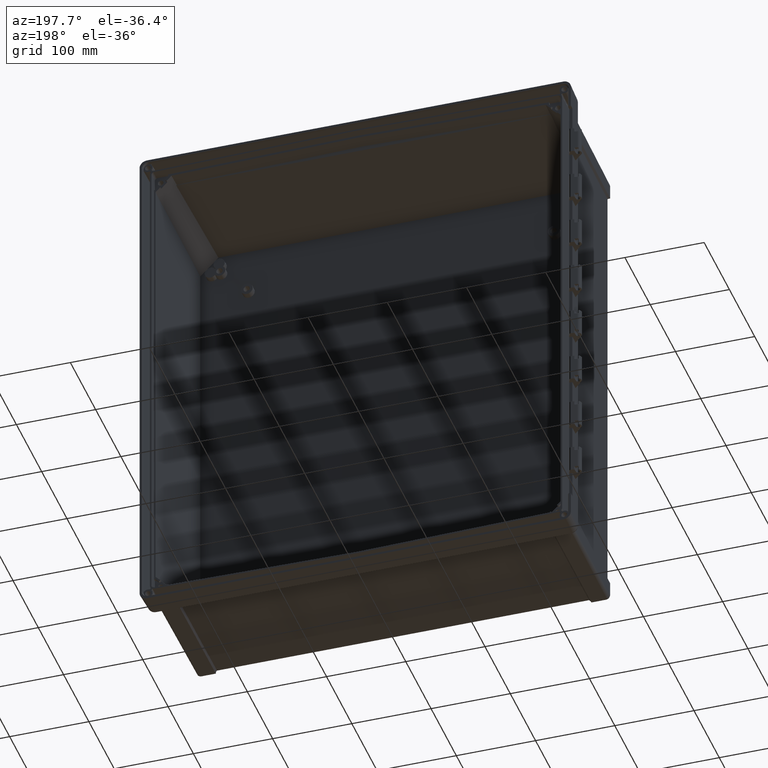
[diagram: clean part render]
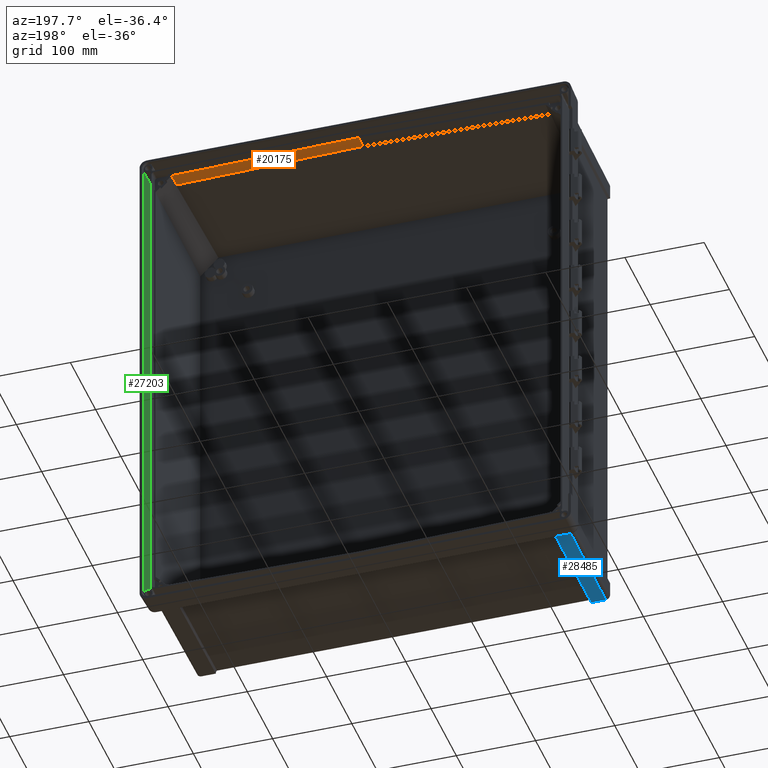
[diagram: same view with three faces highlighted in distinct colors, each labeled with its STEP entity id]
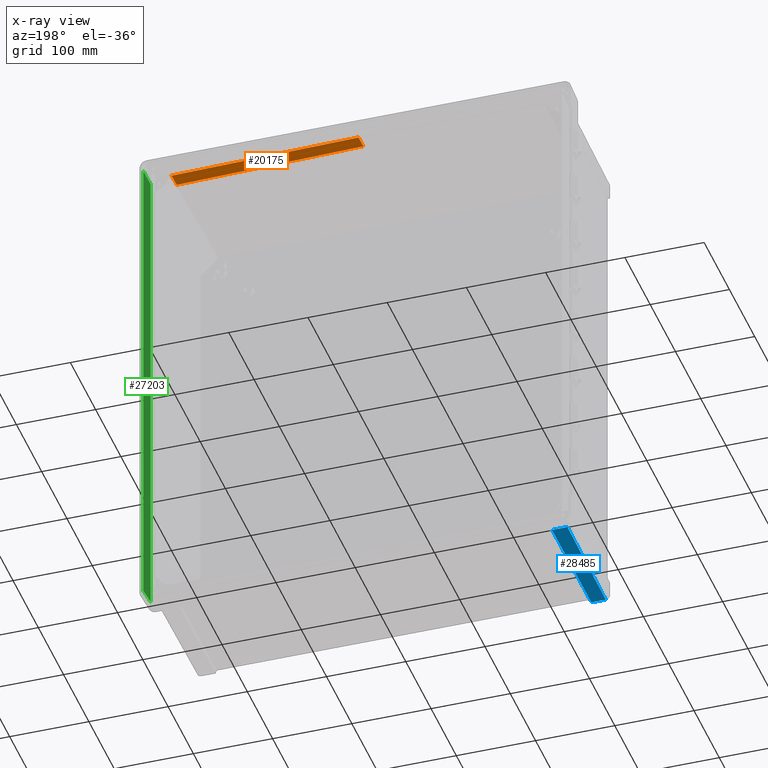
[diagram: x-ray of the same camera — body ghosted, the three highlighted faces saturated]
A machine part, auxiliary view with three faces highlighted in distinct colors.
The next image is the same camera in x-ray (body ghosted, the three faces saturated) — at least one of them is partly hidden behind the body in this view.
Their STEP definitions:

[orange] entity #20175 — the highlighted planar face has unit normal (-0.0175, 0.0087, -0.9998).
#301 = DIRECTION ( 'NONE',  ( 0.9998402234672153500, -0.003716490749647056900, -0.01748471428239026600 ) ) ;
#442 = VERTEX_POINT ( 'NONE', #21818 ) ;
#2798 = CARTESIAN_POINT ( 'NONE',  ( 235.6418524896000100, -32.57640044659000000, 307.3091627719999800 ) ) ;
#2869 = VERTEX_POINT ( 'NONE', #30594 ) ;
#3600 = CARTESIAN_POINT ( 'NONE',  ( 9.852859269207000600E-013, -31.70049973320000100, 311.4299516410999900 ) ) ;
#3601 = EDGE_CURVE ( 'NONE', #442, #2869, #10108, .T. ) ;
#3608 = VERTEX_POINT ( 'NONE', #25788 ) ;
#4383 = EDGE_LOOP ( 'NONE', ( #22325, #12107, #30812, #8321 ) ) ;
#6084 = LINE ( 'NONE', #2798, #11299 ) ;
#6367 = VECTOR ( 'NONE', #21673, 1000.000000000000000 ) ;
#7021 = FACE_OUTER_BOUND ( 'NONE', #4383, .T. ) ;
#8321 = ORIENTED_EDGE ( 'NONE', *, *, #10671, .T. ) ;
#8547 = VERTEX_POINT ( 'NONE', #15142 ) ;
#9271 = LINE ( 'NONE', #24956, #6367 ) ;
#10108 = LINE ( 'NONE', #3600, #20586 ) ;
#10671 = EDGE_CURVE ( 'NONE', #442, #3608, #9271, .T. ) ;
#11299 = VECTOR ( 'NONE', #31616, 1000.000000000000000 ) ;
#11974 = EDGE_CURVE ( 'NONE', #2869, #8547, #6084, .T. ) ;
#12107 = ORIENTED_EDGE ( 'NONE', *, *, #11974, .F. ) ;
#12818 = AXIS2_PLACEMENT_3D ( 'NONE', #19295, #16036, #13638 ) ;
#13638 = DIRECTION ( 'NONE',  ( -0.9998476951563912700, 4.390056537962403300E-018, 0.01745240643727934100 ) ) ;
#15022 = EDGE_CURVE ( 'NONE', #3608, #8547, #29024, .T. ) ;
#15142 = CARTESIAN_POINT ( 'NONE',  ( 236.1982006787000000, -13.26352849845000000, 307.4680182319000300 ) ) ;
#16036 = DIRECTION ( 'NONE',  ( -0.01745174190311937800, 0.008726535498373690100, -0.9998096240198644000 ) ) ;
#19295 = CARTESIAN_POINT ( 'NONE',  ( 76.14764477429000100, -2.973820393505000000, 310.3515216778000100 ) ) ;
#20175 = ADVANCED_FACE ( 'NONE', ( #7021 ), #29168, .T. ) ;
#20586 = VECTOR ( 'NONE', #301, 1000.000000000000000 ) ;
#21673 = DIRECTION ( 'NONE',  ( -5.164031492276897900E-014, 0.9999619114635802700, 0.008727864693204828700 ) ) ;
#21818 = CARTESIAN_POINT ( 'NONE',  ( 9.852859269207000600E-013, -31.70049973320000100, 311.4299516410999900 ) ) ;
#22325 = ORIENTED_EDGE ( 'NONE', *, *, #15022, .T. ) ;
#22452 = DIRECTION ( 'NONE',  ( 0.9998476951563910500, 0.0000000000000000000, -0.01745240643728984300 ) ) ;
#23242 = VECTOR ( 'NONE', #22452, 1000.000000000000100 ) ;
#24956 = CARTESIAN_POINT ( 'NONE',  ( 9.852859269207000600E-013, -31.70049973320000100, 311.4299516410999900 ) ) ;
#25717 = CARTESIAN_POINT ( 'NONE',  ( 3.315866100214000500E-014, -13.26352849845000000, 311.5908731605999800 ) ) ;
#25788 = CARTESIAN_POINT ( 'NONE',  ( 3.315866100214000500E-014, -13.26352849845000000, 311.5908731605999800 ) ) ;
#29024 = LINE ( 'NONE', #25717, #23242 ) ;
#29168 = PLANE ( 'NONE',  #12818 ) ;
#30594 = CARTESIAN_POINT ( 'NONE',  ( 235.6418524896000100, -32.57640044659000000, 307.3091627719999800 ) ) ;
#30812 = ORIENTED_EDGE ( 'NONE', *, *, #3601, .F. ) ;
#31616 = DIRECTION ( 'NONE',  ( 0.02879419981799001200, 0.9995515484767003600, 0.008221678336708003100 ) ) ;

[blue] entity #28485 — the highlighted planar face has unit normal (0, -0.0087, -1).
#2721 = PLANE ( 'NONE',  #20339 ) ;
#2993 = CARTESIAN_POINT ( 'NONE',  ( -250.8696530111668000, -35.58591520093000300, -312.3894464227990400 ) ) ;
#3639 = VERTEX_POINT ( 'NONE', #21729 ) ;
#4470 = CARTESIAN_POINT ( 'NONE',  ( -237.0179237817999900, -189.4000009655000000, -311.0471312320000300 ) ) ;
#6259 = CARTESIAN_POINT ( 'NONE',  ( -253.6732588157668400, -35.45242634481665800, -312.3906113623978600 ) ) ;
#6312 = VERTEX_POINT ( 'NONE', #14697 ) ;
#6407 = CARTESIAN_POINT ( 'NONE',  ( -237.0300377497000000, -191.4000000000000100, -311.0296775048000200 ) ) ;
#6546 = CARTESIAN_POINT ( 'NONE',  ( -237.1580245855000200, -35.58591520091999900, -312.3894464228000100 ) ) ;
#8632 = VECTOR ( 'NONE', #14409, 1000.000000000000000 ) ;
#9800 = CARTESIAN_POINT ( 'NONE',  ( -237.1111295887314700, -86.85727834659645900, -311.9421687551725300 ) ) ;
#11645 = EDGE_CURVE ( 'NONE', #30475, #31774, #21002, .T. ) ;
#11819 = B_SPLINE_CURVE_WITH_KNOTS ( 'NONE', 3,
 ( #19704, #13120, #9800, #6546 ),
 .UNSPECIFIED., .F., .F.,
 ( 4, 4 ),
 ( 0.0000000000000000000, 1.000000000000000000 ),
 .UNSPECIFIED. ) ;
#12932 = EDGE_CURVE ( 'NONE', #30475, #29107, #25411, .T. ) ;
#13120 = CARTESIAN_POINT ( 'NONE',  ( -237.0642345919499100, -138.1286414921902400, -311.4948910875544400 ) ) ;
#13702 = CARTESIAN_POINT ( 'NONE',  ( -237.0179237817999900, -189.4000009655000000, -311.0471312320000300 ) ) ;
#13974 = DIRECTION ( 'NONE',  ( 0.008726203243714756800, -0.9999238504775721500, 0.008726203243985757000 ) ) ;
#14409 = DIRECTION ( 'NONE',  ( -1.000000000000000000, 0.0000000000000000000, 8.165421025444999800E-014 ) ) ;
#14697 = CARTESIAN_POINT ( 'NONE',  ( -248.0823328900999900, -35.58591520117001000, -312.3894464215999800 ) ) ;
#16116 = CARTESIAN_POINT ( 'NONE',  ( -256.4931506648000000, -35.18544863259000300, -312.3929412416000000 ) ) ;
#17014 = CARTESIAN_POINT ( 'NONE',  ( -237.0221776496695400, -190.0666654160123100, -311.0412906331814000 ) ) ;
#17303 = CARTESIAN_POINT ( 'NONE',  ( -256.4931506648000000, -35.18544863259000300, -312.3929412416000000 ) ) ;
#17630 = VECTOR ( 'NONE', #13974, 999.9999999999998900 ) ;
#17745 = CARTESIAN_POINT ( 'NONE',  ( -237.0300377497000000, -191.4000000000000100, -311.0296775048000200 ) ) ;
#17867 = FACE_OUTER_BOUND ( 'NONE', #26402, .T. ) ;
#17883 = ORIENTED_EDGE ( 'NONE', *, *, #24091, .T. ) ;
#18111 = ORIENTED_EDGE ( 'NONE', *, *, #12932, .F. ) ;
#19135 = EDGE_CURVE ( 'NONE', #29107, #3639, #11819, .T. ) ;
#19510 = B_SPLINE_CURVE_WITH_KNOTS ( 'NONE', 3,
 ( #16116, #6259, #2993, #31808 ),
 .UNSPECIFIED., .F., .F.,
 ( 4, 4 ),
 ( 0.0000000000000000000, 1.000000000000000000 ),
 .UNSPECIFIED. ) ;
#19704 = CARTESIAN_POINT ( 'NONE',  ( -237.0179237817999900, -189.4000009655000000, -311.0471312320000300 ) ) ;
#20309 = CARTESIAN_POINT ( 'NONE',  ( -237.0274029114080700, -190.7333213426038600, -311.0353479367530000 ) ) ;
#20339 = AXIS2_PLACEMENT_3D ( 'NONE', #31540, #28237, #24913 ) ;
#20358 = ORIENTED_EDGE ( 'NONE', *, *, #22437, .F. ) ;
#21002 = LINE ( 'NONE', #17745, #8632 ) ;
#21286 = CARTESIAN_POINT ( 'NONE',  ( -256.4931506648000000, -35.18544863259000300, -312.3929412416000000 ) ) ;
#21420 = EDGE_CURVE ( 'NONE', #30939, #31774, #23832, .T. ) ;
#21729 = CARTESIAN_POINT ( 'NONE',  ( -237.1580245855000200, -35.58591520091999900, -312.3894464228000100 ) ) ;
#22437 = EDGE_CURVE ( 'NONE', #3639, #6312, #30351, .T. ) ;
#22884 = ORIENTED_EDGE ( 'NONE', *, *, #11645, .T. ) ;
#23547 = ORIENTED_EDGE ( 'NONE', *, *, #19135, .F. ) ;
#23568 = CARTESIAN_POINT ( 'NONE',  ( -237.0300377497000000, -191.4000000000000100, -311.0296775048000200 ) ) ;
#23708 = DIRECTION ( 'NONE',  ( -1.000000000000000000, -2.223863150054000100E-011, 1.058161060384000000E-010 ) ) ;
#23832 = LINE ( 'NONE', #17303, #17630 ) ;
#24091 = EDGE_CURVE ( 'NONE', #30939, #6312, #19510, .T. ) ;
#24913 = DIRECTION ( 'NONE',  ( 0.0000000000000000000, 0.9999619230641713100, -0.008726535498373750800 ) ) ;
#25411 = B_SPLINE_CURVE_WITH_KNOTS ( 'NONE', 3,
 ( #23568, #20309, #17014, #13702 ),
 .UNSPECIFIED., .F., .F.,
 ( 4, 4 ),
 ( 0.0000000000000000000, 1.000000000000000000 ),
 .UNSPECIFIED. ) ;
#26402 = EDGE_LOOP ( 'NONE', ( #29334, #17883, #20358, #23547, #18111, #22884 ) ) ;
#27008 = CARTESIAN_POINT ( 'NONE',  ( -237.1580245855000200, -35.58591520091999900, -312.3894464228000100 ) ) ;
#28237 = DIRECTION ( 'NONE',  ( 0.0000000000000000000, -0.008726535498373750800, -0.9999619230641713100 ) ) ;
#28404 = VECTOR ( 'NONE', #23708, 1000.000000000000000 ) ;
#28485 = ADVANCED_FACE ( 'NONE', ( #17867 ), #2721, .T. ) ;
#29107 = VERTEX_POINT ( 'NONE', #4470 ) ;
#29334 = ORIENTED_EDGE ( 'NONE', *, *, #21420, .F. ) ;
#30351 = LINE ( 'NONE', #27008, #28404 ) ;
#30475 = VERTEX_POINT ( 'NONE', #6407 ) ;
#30939 = VERTEX_POINT ( 'NONE', #21286 ) ;
#31540 = CARTESIAN_POINT ( 'NONE',  ( -268.1999999999999900, -14.00000000000000000, -312.5778238509000700 ) ) ;
#31695 = CARTESIAN_POINT ( 'NONE',  ( -255.1298869279999900, -191.4000000000000100, -311.0296775048000200 ) ) ;
#31774 = VERTEX_POINT ( 'NONE', #31695 ) ;
#31808 = CARTESIAN_POINT ( 'NONE',  ( -248.0823328900999900, -35.58591520117001000, -312.3894464215999800 ) ) ;

[green] entity #27203 — the highlighted planar face has unit normal (0.9994, -0.0349, 0).
#35 = CARTESIAN_POINT ( 'NONE',  ( 267.6481747213293800, -15.80220844792498600, 312.6758598883908500 ) ) ;
#44 = CARTESIAN_POINT ( 'NONE',  ( 267.4262962134037000, -22.15576466210094300, -312.3549694731985900 ) ) ;
#124 = CARTESIAN_POINT ( 'NONE',  ( 268.1295781602000800, -2.017383287152000100, -315.0593934240999900 ) ) ;
#396 = CARTESIAN_POINT ( 'NONE',  ( 267.1988132165000100, -28.67030636554000000, -312.0213124790000200 ) ) ;
#724 = CARTESIAN_POINT ( 'NONE',  ( 268.0882535418999700, -3.199999944637000200, -314.8042219335999900 ) ) ;
#731 = CARTESIAN_POINT ( 'NONE',  ( 267.2048817922896500, -28.49445206089977800, 312.0677366632893900 ) ) ;
#831 = CARTESIAN_POINT ( 'NONE',  ( 267.4266649639897700, -22.14541796374334100, 312.3554314865309600 ) ) ;
#996 = CARTESIAN_POINT ( 'NONE',  ( 267.2049209626883300, -28.49337921674748100, -312.0699001359660100 ) ) ;
#1019 = B_SPLINE_CURVE_WITH_KNOTS ( 'NONE', 3,
 ( #17281, #10656, #7403, #4128 ),
 .UNSPECIFIED., .F., .F.,
 ( 4, 4 ),
 ( 0.0000000000000000000, 1.000000000000000000 ),
 .UNSPECIFIED. ) ;
#1022 = CARTESIAN_POINT ( 'NONE',  ( 267.8718526987265700, -9.395883534318748800, -313.0321216473831800 ) ) ;
#1415 = CARTESIAN_POINT ( 'NONE',  ( 267.2016230627000400, -28.58524867631000200, -312.0607375349000000 ) ) ;
#1421 = EDGE_CURVE ( 'NONE', #24653, #26996, #18303, .T. ) ;
#1544 = CARTESIAN_POINT ( 'NONE',  ( 268.1033188627502600, -2.768585533964726500, 314.8875222912204800 ) ) ;
#1764 = CARTESIAN_POINT ( 'NONE',  ( 267.8168463674861100, -10.97154324174623800, -312.9416371350241700 ) ) ;
#1884 = VERTEX_POINT ( 'NONE', #8659 ) ;
#2292 = EDGE_CURVE ( 'NONE', #18352, #1884, #11773, .T. ) ;
#2563 = CARTESIAN_POINT ( 'NONE',  ( 267.5602554165763000, -18.31990902432602300, -312.5443609992802300 ) ) ;
#3034 = DIRECTION ( 'NONE',  ( 0.03489949670249985200, 0.9993908270190956500, 0.0000000000000000000 ) ) ;
#3197 = B_SPLINE_CURVE_WITH_KNOTS ( 'NONE', 3,
 ( #996, #19935, #16637, #13343 ),
 .UNSPECIFIED., .F., .F.,
 ( 4, 4 ),
 ( 0.0000000000000000000, 1.000000000000000000 ),
 .UNSPECIFIED. ) ;
#3348 = CARTESIAN_POINT ( 'NONE',  ( 267.6434405798626700, -15.93777652204894200, 312.6686525944664900 ) ) ;
#3356 = CARTESIAN_POINT ( 'NONE',  ( 267.4221873536712300, -22.27342134037301900, -312.3493800288868000 ) ) ;
#3431 = CARTESIAN_POINT ( 'NONE',  ( 268.1295514558178200, -2.017382354614422700, -105.0197978080333300 ) ) ;
#3436 = B_SPLINE_CURVE_WITH_KNOTS ( 'NONE', 3,
 ( #9936, #6674, #3431, #124 ),
 .UNSPECIFIED., .F., .F.,
 ( 4, 4 ),
 ( 0.0000000000000000000, 1.000000000000000000 ),
 .UNSPECIFIED. ) ;
#3687 = LINE ( 'NONE', #396, #14813 ) ;
#4103 = CARTESIAN_POINT ( 'NONE',  ( 267.4229168069694500, -22.25275113752168500, 312.3503055036330800 ) ) ;
#4128 = CARTESIAN_POINT ( 'NONE',  ( 267.2016230627000400, -28.58524867631000200, 312.0607375349000000 ) ) ;
#4298 = CARTESIAN_POINT ( 'NONE',  ( 267.8718213772551200, -9.396780746434938400, -313.0320697273005000 ) ) ;
#4861 = CARTESIAN_POINT ( 'NONE',  ( 268.0882535418999700, -3.199999944637000200, 314.8042219335999900 ) ) ;
#4994 = VERTEX_POINT ( 'NONE', #5033 ) ;
#5033 = CARTESIAN_POINT ( 'NONE',  ( 268.1295781602000800, -2.017383287152000100, -315.0593934240999900 ) ) ;
#5099 = CARTESIAN_POINT ( 'NONE',  ( 267.8002070890290200, -11.44816344104136600, -312.9145908889435100 ) ) ;
#5283 = CARTESIAN_POINT ( 'NONE',  ( 267.1987009445044200, -28.67291550718952200, 312.0261398538864900 ) ) ;
#5411 = ORIENTED_EDGE ( 'NONE', *, *, #1421, .T. ) ;
#5721 = ORIENTED_EDGE ( 'NONE', *, *, #21094, .F. ) ;
#5869 = CARTESIAN_POINT ( 'NONE',  ( 267.5400522730619700, -18.89840463643580300, -312.5149713528871300 ) ) ;
#6038 = CARTESIAN_POINT ( 'NONE',  ( 268.0882167131999800, -3.200000185766000100, -313.4049730721000100 ) ) ;
#6223 = ORIENTED_EDGE ( 'NONE', *, *, #30957, .T. ) ;
#6298 = DIRECTION ( 'NONE',  ( 0.9993908270190957600, -0.03489949670249985900, 0.0000000000000000000 ) ) ;
#6323 = VERTEX_POINT ( 'NONE', #8115 ) ;
#6592 = CARTESIAN_POINT ( 'NONE',  ( 267.6341202468390700, -16.20467593918885300, 312.6545089059992500 ) ) ;
#6601 = CARTESIAN_POINT ( 'NONE',  ( 267.4139695129717300, -22.50873611879350700, -312.3382234045882300 ) ) ;
#6674 = CARTESIAN_POINT ( 'NONE',  ( 268.1295514558178200, -2.017382354614422700, 105.0197978080332700 ) ) ;
#6843 = ORIENTED_EDGE ( 'NONE', *, *, #30289, .F. ) ;
#7380 = CARTESIAN_POINT ( 'NONE',  ( 267.4153849326561400, -22.46843579805327800, 312.3400289438352500 ) ) ;
#7403 = CARTESIAN_POINT ( 'NONE',  ( 267.2026662112177200, -28.55551885907670600, 312.0679917666083200 ) ) ;
#7480 = CARTESIAN_POINT ( 'NONE',  ( 268.0882167131999800, -3.200000185766000100, 313.4049730721000100 ) ) ;
#7571 = CARTESIAN_POINT ( 'NONE',  ( 267.8716373131295500, -9.402053313480648100, -313.0317646033607800 ) ) ;
#7993 = ORIENTED_EDGE ( 'NONE', *, *, #26245, .T. ) ;
#8004 = CARTESIAN_POINT ( 'NONE',  ( 268.0882535418999700, -3.199999944637000200, 314.8042219335999900 ) ) ;
#8115 = CARTESIAN_POINT ( 'NONE',  ( 267.2016230627000400, -28.58524867631000200, 312.0607375349000000 ) ) ;
#8310 = B_SPLINE_CURVE_WITH_KNOTS ( 'NONE', 3,
 ( #30428, #20544, #17253, #13926, #10630, #7380, #4103, #831, #29631, #26293, #23042, #19751, #16464, #13171, #9847, #6592, #3348, #35, #28839, #25532, #22263 ),
 .UNSPECIFIED., .F., .F.,
 ( 4, 1, 1, 1, 1, 1, 1, 2, 2, 1, 1, 1, 2, 2, 4 ),
 ( 0.0000000000000000000, 0.1250000000000064100, 0.1875000000000093800, 0.2187500000000108800, 0.2343750000000117400, 0.2421875000000122100, 0.2460937500000121000, 0.2480468750000120200, 0.2500000000000119300, 0.3750000000000111000, 0.4375000000000106000, 0.4687500000000106600, 0.4843750000000105500, 0.5000000000000103300, 1.000000000000000000 ),
 .UNSPECIFIED. ) ;
#8332 = CARTESIAN_POINT ( 'NONE',  ( 267.7454011345097900, -13.01796264081002600, -312.8265292873918500 ) ) ;
#8659 = CARTESIAN_POINT ( 'NONE',  ( 268.0882167131999800, -3.200000185766000100, -313.4049730721000100 ) ) ;
#8710 = ORIENTED_EDGE ( 'NONE', *, *, #14148, .T. ) ;
#9078 = CARTESIAN_POINT ( 'NONE',  ( 267.4844596832933200, -20.49025323005935600, -312.4350879409176400 ) ) ;
#9252 = CARTESIAN_POINT ( 'NONE',  ( 268.0882535040515200, -3.200000961458580900, -313.8713893592666900 ) ) ;
#9318 = CARTESIAN_POINT ( 'NONE',  ( 268.0882535418999700, -3.199999944637000200, -314.8042219335999900 ) ) ;
#9405 = EDGE_LOOP ( 'NONE', ( #22795, #6843, #6223, #5721, #22091, #8710, #20479, #25090, #12974, #27499, #5411, #7993 ) ) ;
#9533 = CARTESIAN_POINT ( 'NONE',  ( 268.1999999999999900, 0.0000000000000000000, -119.8471312404000000 ) ) ;
#9847 = CARTESIAN_POINT ( 'NONE',  ( 267.6201456510694900, -16.60485600317142700, 312.6333698244615100 ) ) ;
#9855 = CARTESIAN_POINT ( 'NONE',  ( 267.3975333504432100, -22.97937132787479100, -312.3159986942474700 ) ) ;
#9936 = CARTESIAN_POINT ( 'NONE',  ( 268.1295781602000800, -2.017383287152000100, 315.0593934240999900 ) ) ;
#10617 = EDGE_CURVE ( 'NONE', #13655, #1884, #22882, .T. ) ;
#10630 = CARTESIAN_POINT ( 'NONE',  ( 267.4001789429387400, -22.90387837101628300, 312.3193774482308500 ) ) ;
#10656 = CARTESIAN_POINT ( 'NONE',  ( 267.2037259135415200, -28.52509957944202400, 312.0724316865460500 ) ) ;
#10822 = CARTESIAN_POINT ( 'NONE',  ( 267.8713609188828300, -9.409970702224210700, -313.0313064393342900 ) ) ;
#11033 = CARTESIAN_POINT ( 'NONE',  ( 268.0882167131999800, -3.200000185766000100, 313.4049730721000100 ) ) ;
#11582 = CARTESIAN_POINT ( 'NONE',  ( 267.7023460815104800, -14.25108017421708300, -312.7585812310729200 ) ) ;
#11773 = B_SPLINE_CURVE_WITH_KNOTS ( 'NONE', 3,
 ( #25714, #12578, #9252, #6038 ),
 .UNSPECIFIED., .F., .F.,
 ( 4, 4 ),
 ( 0.0000000000000000000, 1.000000000000000000 ),
 .UNSPECIFIED. ) ;
#12202 = FACE_OUTER_BOUND ( 'NONE', #9405, .T. ) ;
#12273 = B_SPLINE_CURVE_WITH_KNOTS ( 'NONE', 3,
 ( #20948, #17686, #14349, #11033 ),
 .UNSPECIFIED., .F., .F.,
 ( 4, 4 ),
 ( 0.0000000000000000000, 1.000000000000000000 ),
 .UNSPECIFIED. ) ;
#12389 = CARTESIAN_POINT ( 'NONE',  ( 267.4540872109165500, -21.35996633935433700, -312.3928470582255800 ) ) ;
#12578 = CARTESIAN_POINT ( 'NONE',  ( 268.0882535218070200, -3.200000453006979200, -314.3378056464333100 ) ) ;
#12853 = EDGE_CURVE ( 'NONE', #13655, #24653, #3197, .T. ) ;
#12859 = PLANE ( 'NONE',  #15560 ) ;
#12974 = ORIENTED_EDGE ( 'NONE', *, *, #10617, .F. ) ;
#13154 = CARTESIAN_POINT ( 'NONE',  ( 267.2016230627000400, -28.58524867631000200, -312.0607375349000000 ) ) ;
#13171 = CARTESIAN_POINT ( 'NONE',  ( 267.5875795872999600, -17.53742605370627700, 312.5845804590154000 ) ) ;
#13181 = CARTESIAN_POINT ( 'NONE',  ( 267.3646591415683800, -23.92066406260395400, -312.2718991810106100 ) ) ;
#13248 = CARTESIAN_POINT ( 'NONE',  ( 267.2049209626883300, -28.49337921674748100, -312.0699001359660100 ) ) ;
#13343 = CARTESIAN_POINT ( 'NONE',  ( 267.2016230627000400, -28.58524867631000200, -312.0607375349000000 ) ) ;
#13585 = EDGE_CURVE ( 'NONE', #18352, #4994, #25440, .T. ) ;
#13655 = VERTEX_POINT ( 'NONE', #13248 ) ;
#13926 = CARTESIAN_POINT ( 'NONE',  ( 267.3691979991414200, -23.79105652454147400, 312.2776809529888200 ) ) ;
#14018 = VERTEX_POINT ( 'NONE', #731 ) ;
#14122 = CARTESIAN_POINT ( 'NONE',  ( 267.8707139125634700, -9.428504376588557900, -313.0302340444102400 ) ) ;
#14148 = EDGE_CURVE ( 'NONE', #27623, #4994, #3436, .T. ) ;
#14349 = CARTESIAN_POINT ( 'NONE',  ( 268.0882289894474300, -3.200000000000000200, 313.8713893592666900 ) ) ;
#14813 = VECTOR ( 'NONE', #29181, 1000.000000000000100 ) ;
#14922 = CARTESIAN_POINT ( 'NONE',  ( 267.6496678553112900, -15.75959088948875000, -312.6781325097537100 ) ) ;
#15223 = EDGE_CURVE ( 'NONE', #19687, #27623, #17942, .T. ) ;
#15560 = AXIS2_PLACEMENT_3D ( 'NONE', #9533, #6298, #3034 ) ;
#15717 = CARTESIAN_POINT ( 'NONE',  ( 267.4303125240389800, -22.04075745212859200, -312.3604402672922300 ) ) ;
#16464 = CARTESIAN_POINT ( 'NONE',  ( 267.5226127651977200, -19.39783242641144800, 312.4891423606916900 ) ) ;
#16471 = CARTESIAN_POINT ( 'NONE',  ( 267.2989034549293000, -25.80333660204455300, -312.1850674428178000 ) ) ;
#16637 = CARTESIAN_POINT ( 'NONE',  ( 267.2028331443044600, -28.55512264502520700, -312.0680844026817900 ) ) ;
#17253 = CARTESIAN_POINT ( 'NONE',  ( 267.3049602540957600, -25.63058486198858400, 312.1927139463700800 ) ) ;
#17281 = CARTESIAN_POINT ( 'NONE',  ( 267.2048817922896500, -28.49445206089977800, 312.0677366632893900 ) ) ;
#17457 = CARTESIAN_POINT ( 'NONE',  ( 267.8694115542402900, -9.465810795070069600, -313.0280758827661300 ) ) ;
#17686 = CARTESIAN_POINT ( 'NONE',  ( 268.0882412656737300, -3.200000000000000200, 314.3378056464333100 ) ) ;
#17942 = B_SPLINE_CURVE_WITH_KNOTS ( 'NONE', 3,
 ( #4861, #1544, #30397, #27056 ),
 .UNSPECIFIED., .F., .F.,
 ( 4, 4 ),
 ( 0.0000000000000000000, 1.000000000000000000 ),
 .UNSPECIFIED. ) ;
#18243 = CARTESIAN_POINT ( 'NONE',  ( 267.6464886957853100, -15.85062971042756500, -312.6732877190933700 ) ) ;
#18303 = B_SPLINE_CURVE_WITH_KNOTS ( 'NONE', 3,
 ( #1415, #30263, #26918, #23628 ),
 .UNSPECIFIED., .F., .F.,
 ( 4, 4 ),
 ( 0.0000000000000000000, 1.000000000000000000 ),
 .UNSPECIFIED. ) ;
#18352 = VERTEX_POINT ( 'NONE', #9318 ) ;
#18970 = CARTESIAN_POINT ( 'NONE',  ( 267.4301115468280200, -22.04651245799259100, -312.3601663361403700 ) ) ;
#19687 = VERTEX_POINT ( 'NONE', #8004 ) ;
#19751 = CARTESIAN_POINT ( 'NONE',  ( 267.4672102984308700, -20.98435149724809200, 312.4110079322453500 ) ) ;
#19760 = CARTESIAN_POINT ( 'NONE',  ( 267.2425285409970000, -27.41719966937662900, -312.1128939833455400 ) ) ;
#19843 = CARTESIAN_POINT ( 'NONE',  ( 267.1986683301905100, -28.67301157987887400, -312.0280811895411800 ) ) ;
#19935 = CARTESIAN_POINT ( 'NONE',  ( 267.2039001494724700, -28.52456761478129400, -312.0725318983983800 ) ) ;
#20479 = ORIENTED_EDGE ( 'NONE', *, *, #13585, .F. ) ;
#20544 = CARTESIAN_POINT ( 'NONE',  ( 267.2459978598554400, -27.31904691762336800, 312.1171867701808700 ) ) ;
#20742 = CARTESIAN_POINT ( 'NONE',  ( 267.8667734545414300, -9.541379915612665700, -313.0237061552763900 ) ) ;
#20948 = CARTESIAN_POINT ( 'NONE',  ( 268.0882535418999700, -3.199999944637000200, 314.8042219335999900 ) ) ;
#20951 = CARTESIAN_POINT ( 'NONE',  ( 267.1987009445044200, -28.67291550718952200, 312.0261398538864900 ) ) ;
#21094 = EDGE_CURVE ( 'NONE', #19687, #22569, #12273, .T. ) ;
#21481 = CARTESIAN_POINT ( 'NONE',  ( 267.6402890946198500, -16.02816117490681700, -312.6638601029018200 ) ) ;
#22091 = ORIENTED_EDGE ( 'NONE', *, *, #15223, .T. ) ;
#22263 = CARTESIAN_POINT ( 'NONE',  ( 268.0882167131999800, -3.200000185766000100, 313.4049730721000100 ) ) ;
#22273 = CARTESIAN_POINT ( 'NONE',  ( 267.4298180608355400, -22.05491645970606000, -312.3597663585017600 ) ) ;
#22569 = VERTEX_POINT ( 'NONE', #7480 ) ;
#22795 = ORIENTED_EDGE ( 'NONE', *, *, #24049, .F. ) ;
#22882 = B_SPLINE_CURVE_WITH_KNOTS ( 'NONE', 3,
 ( #23051, #19760, #16471, #13181, #9855, #6601, #3356, #44, #28848, #25539, #22273, #18970, #15717, #12389, #9078, #5869, #2563, #31385, #28080, #24756, #21481, #18243, #14922, #11582, #8332, #5099, #1764, #30626, #27294, #23975, #20742, #17457, #14122, #10822, #7571, #4298, #1022, #29833, #26490, #23239 ),
 .UNSPECIFIED., .F., .F.,
 ( 4, 1, 1, 1, 1, 1, 1, 1, 1, 2, 2, 2, 2, 1, 1, 2, 2, 2, 2, 1, 1, 1, 1, 1, 1, 2, 2, 4 ),
 ( 0.0000000000000000000, 0.1249999999998462300, 0.1874999999997693500, 0.2187499999997305500, 0.2343749999997111200, 0.2421874999997015200, 0.2460937499996967400, 0.2480468749996944700, 0.2490234374996933800, 0.2495117187496932200, 0.2499999999996930200, 0.3749999999997404300, 0.4374999999997643000, 0.4687499999997762300, 0.4843749999997824500, 0.4921874999997857300, 0.4999999999997889500, 0.6249999999998426800, 0.6874999999998696600, 0.7187499999998830900, 0.7343749999998895300, 0.7421874999998925300, 0.7460937499998934200, 0.7480468749998943100, 0.7490234374998948600, 0.7495117187498950800, 0.7499999999998954200, 1.000000000000000000 ),
 .UNSPECIFIED. ) ;
#22931 = CARTESIAN_POINT ( 'NONE',  ( 268.1295781602000800, -2.017383287152000100, -315.0593934240999900 ) ) ;
#23042 = CARTESIAN_POINT ( 'NONE',  ( 267.4298261264789300, -22.05489411403545200, 312.3597608548528800 ) ) ;
#23051 = CARTESIAN_POINT ( 'NONE',  ( 267.2049209626883300, -28.49337921674748100, -312.0699001359660100 ) ) ;
#23239 = CARTESIAN_POINT ( 'NONE',  ( 268.0882167131999800, -3.200000185766000100, -313.4049730721000100 ) ) ;
#23628 = CARTESIAN_POINT ( 'NONE',  ( 267.1986683301905100, -28.67301157987887400, -312.0280811895411800 ) ) ;
#23975 = CARTESIAN_POINT ( 'NONE',  ( 267.8613637203191000, -9.696343327913187000, -313.0147537543031100 ) ) ;
#24049 = EDGE_CURVE ( 'NONE', #6323, #25254, #24348, .T. ) ;
#24200 = CARTESIAN_POINT ( 'NONE',  ( 267.1995206870512900, -28.64580893140581700, 312.0428907917830100 ) ) ;
#24348 = B_SPLINE_CURVE_WITH_KNOTS ( 'NONE', 3,
 ( #30851, #27522, #24200, #20951 ),
 .UNSPECIFIED., .F., .F.,
 ( 4, 4 ),
 ( 0.0000000000000000000, 1.000000000000000000 ),
 .UNSPECIFIED. ) ;
#24653 = VERTEX_POINT ( 'NONE', #13154 ) ;
#24756 = CARTESIAN_POINT ( 'NONE',  ( 267.6310679741218300, -16.29221506134782500, -312.6498675983727400 ) ) ;
#25090 = ORIENTED_EDGE ( 'NONE', *, *, #2292, .T. ) ;
#25254 = VERTEX_POINT ( 'NONE', #5283 ) ;
#25440 = B_SPLINE_CURVE_WITH_KNOTS ( 'NONE', 3,
 ( #724, #29516, #26185, #22931 ),
 .UNSPECIFIED., .F., .F.,
 ( 4, 4 ),
 ( 0.0000000000000000000, 1.000000000000000000 ),
 .UNSPECIFIED. ) ;
#25532 = CARTESIAN_POINT ( 'NONE',  ( 267.9448760901738600, -7.305792900306982100, 313.1479839093608500 ) ) ;
#25539 = CARTESIAN_POINT ( 'NONE',  ( 267.4293778315740700, -22.06752246546858500, -312.3591664420131300 ) ) ;
#25714 = CARTESIAN_POINT ( 'NONE',  ( 268.0882535418999700, -3.199999944637000200, -314.8042219335999900 ) ) ;
#26185 = CARTESIAN_POINT ( 'NONE',  ( 268.1171527732047400, -2.374058964694542700, -314.9726533813272900 ) ) ;
#26245 = EDGE_CURVE ( 'NONE', #26996, #25254, #3687, .T. ) ;
#26293 = CARTESIAN_POINT ( 'NONE',  ( 267.4293350222823200, -22.06895749819424400, 312.3590879255292000 ) ) ;
#26490 = CARTESIAN_POINT ( 'NONE',  ( 268.0221056608804100, -5.091897566913893900, -313.2865556788940500 ) ) ;
#26918 = CARTESIAN_POINT ( 'NONE',  ( 267.1996756638987400, -28.64554105366043000, -312.0430013615113000 ) ) ;
#26996 = VERTEX_POINT ( 'NONE', #19843 ) ;
#27056 = CARTESIAN_POINT ( 'NONE',  ( 268.1295781602000800, -2.017383287152000100, 315.0593934240999900 ) ) ;
#27203 = ADVANCED_FACE ( 'NONE', ( #12202 ), #12859, .F. ) ;
#27294 = CARTESIAN_POINT ( 'NONE',  ( 267.8500100919126800, -10.02157113500044800, -312.9960026180972900 ) ) ;
#27499 = ORIENTED_EDGE ( 'NONE', *, *, #12853, .T. ) ;
#27522 = CARTESIAN_POINT ( 'NONE',  ( 267.2005630686544500, -28.61589594200158600, 312.0532978522441600 ) ) ;
#27623 = VERTEX_POINT ( 'NONE', #31407 ) ;
#28080 = CARTESIAN_POINT ( 'NONE',  ( 267.6101000709692200, -16.89263701705417400, -312.6182498331309000 ) ) ;
#28839 = CARTESIAN_POINT ( 'NONE',  ( 267.7997138669591100, -11.46269509139727400, 312.9072837966932100 ) ) ;
#28848 = CARTESIAN_POINT ( 'NONE',  ( 267.4283506280571600, -22.09693650125212700, -312.3577669865334200 ) ) ;
#29181 = DIRECTION ( 'NONE',  ( -4.479261344332894000E-008, -1.282692635471969600E-006, 0.9999999999991763300 ) ) ;
#29516 = CARTESIAN_POINT ( 'NONE',  ( 268.1033300848812900, -2.768264517189543000, -314.8875842735722600 ) ) ;
#29631 = CARTESIAN_POINT ( 'NONE',  ( 267.4282675069692900, -22.09952713708567600, 312.3576257012728100 ) ) ;
#29833 = CARTESIAN_POINT ( 'NONE',  ( 267.9500567765726900, -7.155706537528387500, -313.1617699208773600 ) ) ;
#30263 = CARTESIAN_POINT ( 'NONE',  ( 267.2007111091410800, -28.61588978144121100, -312.0532896092037200 ) ) ;
#30289 = EDGE_CURVE ( 'NONE', #14018, #6323, #1019, .T. ) ;
#30397 = CARTESIAN_POINT ( 'NONE',  ( 268.1170848348353400, -2.374379670651074900, 314.9725794547205200 ) ) ;
#30428 = CARTESIAN_POINT ( 'NONE',  ( 267.2048817922896500, -28.49445206089977800, 312.0677366632893900 ) ) ;
#30626 = CARTESIAN_POINT ( 'NONE',  ( 267.8393626285480300, -10.32656913099440900, -312.9784985172843800 ) ) ;
#30851 = CARTESIAN_POINT ( 'NONE',  ( 267.2016230627000400, -28.58524867631000200, 312.0607375349000000 ) ) ;
#30957 = EDGE_CURVE ( 'NONE', #14018, #22569, #8310, .T. ) ;
#31385 = CARTESIAN_POINT ( 'NONE',  ( 267.5930673365396000, -17.38036162527495800, -312.5928802304172800 ) ) ;
#31407 = CARTESIAN_POINT ( 'NONE',  ( 268.1295781602000800, -2.017383287152000100, 315.0593934240999900 ) ) ;